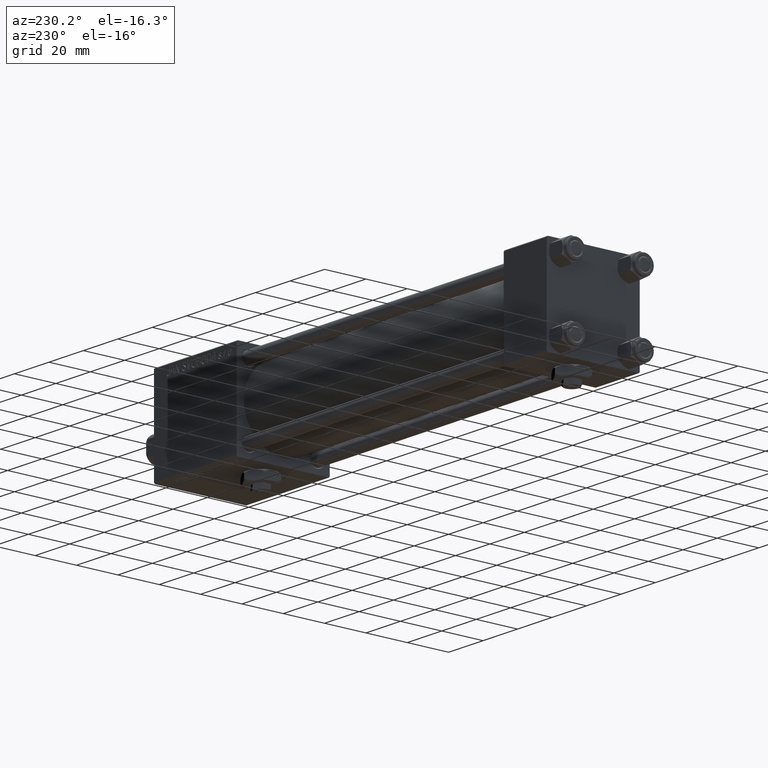
[diagram: clean part render]
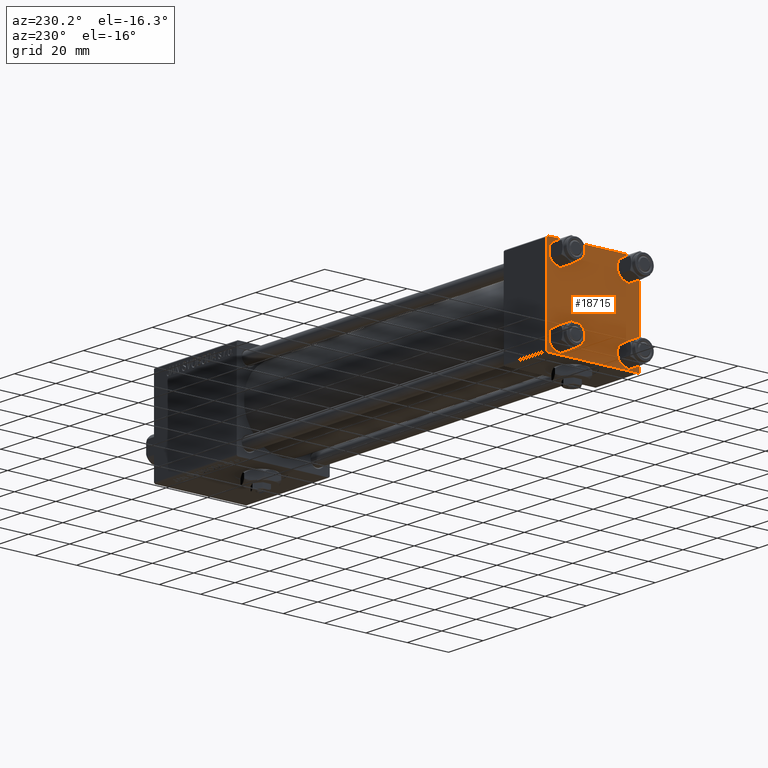
[diagram: same view with one face highlighted and labeled with its STEP entity id]
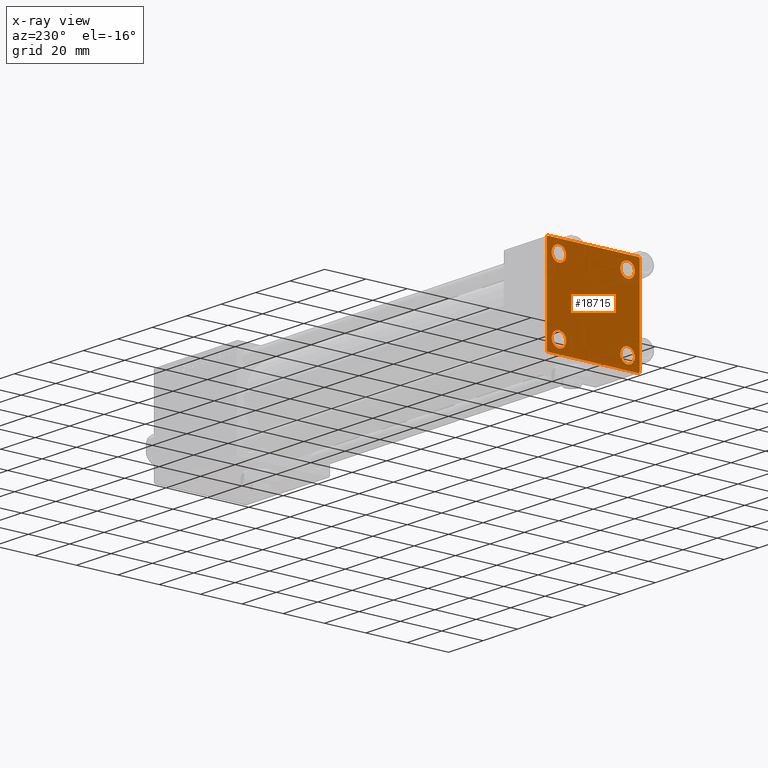
[diagram: x-ray of the same camera — body ghosted, the highlighted face saturated]
A machine part, auxiliary view. The second image highlights one B-rep face of the part: STEP entity #18715.
The next image is the same camera in x-ray: the body ghosted, the highlighted face saturated — about 0% of this face is hidden behind the body in this view.
In plain terms, the highlighted planar face has unit normal (-1, 0, 0).
Its self-contained STEP definition (entity closure, byte-faithful):
#287 = DIRECTION ( 'NONE',  ( 0.000000000000000000, 0.000000000000000000, 1.000000000000000000 ) ) ;
#431 = LINE ( 'NONE', #12297, #35179 ) ;
#534 = VECTOR ( 'NONE', #43013, 1000.000000000000000 ) ;
#538 = LINE ( 'NONE', #33000, #32851 ) ;
#647 = CARTESIAN_POINT ( 'NONE',  ( 0.000000000000000000, -22.50000000000000000, 22.00000000000000000 ) ) ;
#875 = AXIS2_PLACEMENT_3D ( 'NONE', #36017, #19376, #27574 ) ;
#1254 = AXIS2_PLACEMENT_3D ( 'NONE', #43471, #16739, #35295 ) ;
#2046 = ORIENTED_EDGE ( 'NONE', *, *, #45220, .T. ) ;
#2118 = CARTESIAN_POINT ( 'NONE',  ( 0.000000000000000000, 16.59999999999999787, 20.10000000000000142 ) ) ;
#2178 = VERTEX_POINT ( 'NONE', #17713 ) ;
#2425 = DIRECTION ( 'NONE',  ( 0.000000000000000000, 0.000000000000000000, 1.000000000000000000 ) ) ;
#3446 = DIRECTION ( 'NONE',  ( 0.000000000000000000, 0.000000000000000000, 1.000000000000000000 ) ) ;
#3458 = AXIS2_PLACEMENT_3D ( 'NONE', #34856, #14276, #2425 ) ;
#4057 = ORIENTED_EDGE ( 'NONE', *, *, #16570, .T. ) ;
#4353 = FACE_BOUND ( 'NONE', #31605, .T. ) ;
#4789 = ORIENTED_EDGE ( 'NONE', *, *, #22658, .T. ) ;
#5579 = DIRECTION ( 'NONE',  ( 0.000000000000000000, 0.000000000000000000, 1.000000000000000000 ) ) ;
#5751 = CARTESIAN_POINT ( 'NONE',  ( 0.000000000000000000, 16.59999999999999787, -16.60000000000000497 ) ) ;
#5821 = EDGE_LOOP ( 'NONE', ( #49322, #4789 ) ) ;
#6267 = ORIENTED_EDGE ( 'NONE', *, *, #21087, .T. ) ;
#7068 = CARTESIAN_POINT ( 'NONE',  ( 0.000000000000000000, -22.25000000000014566, -22.24999999999984013 ) ) ;
#7204 = CARTESIAN_POINT ( 'NONE',  ( 0.000000000000000000, -16.59999999999999076, 20.10000000000000853 ) ) ;
#7249 = EDGE_CURVE ( 'NONE', #17102, #20715, #12703, .T. ) ;
#7288 = EDGE_CURVE ( 'NONE', #20715, #32112, #35101, .T. ) ;
#8917 = VERTEX_POINT ( 'NONE', #14116 ) ;
#9281 = DIRECTION ( 'NONE',  ( 1.000000000000000000, -0.000000000000000000, 0.000000000000000000 ) ) ;
#9642 = CIRCLE ( 'NONE', #1254, 3.499999999999996003 ) ;
#9982 = CARTESIAN_POINT ( 'NONE',  ( 0.000000000000000000, 21.99999999999999289, 22.50000000000000355 ) ) ;
#10976 = AXIS2_PLACEMENT_3D ( 'NONE', #43023, #22964, #3446 ) ;
#11420 = VERTEX_POINT ( 'NONE', #16700 ) ;
#11459 = PLANE ( 'NONE',  #11686 ) ;
#11686 = AXIS2_PLACEMENT_3D ( 'NONE', #36811, #13817, #13302 ) ;
#11799 = CIRCLE ( 'NONE', #875, 3.499999999999996003 ) ;
#12051 = CARTESIAN_POINT ( 'NONE',  ( 0.000000000000000000, 16.59999999999999787, -13.10000000000000675 ) ) ;
#12297 = CARTESIAN_POINT ( 'NONE',  ( -0.000000000000000000, -22.24999999999984013, 22.25000000000015277 ) ) ;
#12511 = FACE_OUTER_BOUND ( 'NONE', #22820, .T. ) ;
#12554 = CARTESIAN_POINT ( 'NONE',  ( 0.000000000000000000, -22.50000000000000000, 22.50000000000000000 ) ) ;
#12703 = LINE ( 'NONE', #41217, #14824 ) ;
#12742 = DIRECTION ( 'NONE',  ( 0.000000000000000000, 0.000000000000000000, 1.000000000000000000 ) ) ;
#13302 = DIRECTION ( 'NONE',  ( -0.000000000000000000, 0.000000000000000000, 1.000000000000000000 ) ) ;
#13817 = DIRECTION ( 'NONE',  ( -1.000000000000000000, 0.000000000000000000, -0.000000000000000000 ) ) ;
#13924 = EDGE_CURVE ( 'NONE', #31781, #32647, #431, .T. ) ;
#14116 = CARTESIAN_POINT ( 'NONE',  ( 0.000000000000000000, 16.59999999999999787, 13.10000000000000675 ) ) ;
#14222 = AXIS2_PLACEMENT_3D ( 'NONE', #29607, #9281, #5579 ) ;
#14276 = DIRECTION ( 'NONE',  ( 1.000000000000000000, -0.000000000000000000, 0.000000000000000000 ) ) ;
#14670 = EDGE_CURVE ( 'NONE', #31781, #51512, #36321, .T. ) ;
#14824 = VECTOR ( 'NONE', #37514, 1000.000000000000114 ) ;
#15674 = CIRCLE ( 'NONE', #45215, 3.499999999999996003 ) ;
#16237 = DIRECTION ( 'NONE',  ( 0.000000000000000000, 0.000000000000000000, -1.000000000000000000 ) ) ;
#16249 = DIRECTION ( 'NONE',  ( -0.000000000000000000, 0.7071067811865525687, 0.7071067811865425767 ) ) ;
#16462 = FACE_BOUND ( 'NONE', #5821, .T. ) ;
#16570 = EDGE_CURVE ( 'NONE', #32112, #41309, #20288, .T. ) ;
#16700 = CARTESIAN_POINT ( 'NONE',  ( 0.000000000000000000, -16.59999999999999076, -20.10000000000000497 ) ) ;
#16739 = DIRECTION ( 'NONE',  ( 1.000000000000000000, -0.000000000000000000, 0.000000000000000000 ) ) ;
#16845 = ORIENTED_EDGE ( 'NONE', *, *, #41752, .T. ) ;
#17102 = VERTEX_POINT ( 'NONE', #9982 ) ;
#17540 = EDGE_LOOP ( 'NONE', ( #2046, #24345 ) ) ;
#17713 = CARTESIAN_POINT ( 'NONE',  ( 0.000000000000000000, 16.59999999999999787, -20.10000000000000142 ) ) ;
#17743 = EDGE_CURVE ( 'NONE', #27343, #42514, #39507, .T. ) ;
#18673 = LINE ( 'NONE', #7068, #42351 ) ;
#18715 = ADVANCED_FACE ( 'NONE', ( #32308, #40504, #4353, #16462, #12511 ), #11459, .T. ) ;
#19376 = DIRECTION ( 'NONE',  ( 1.000000000000000000, -0.000000000000000000, 0.000000000000000000 ) ) ;
#19786 = CARTESIAN_POINT ( 'NONE',  ( 0.000000000000000000, 21.99999999999999289, -22.49999999999999645 ) ) ;
#20006 = VECTOR ( 'NONE', #16237, 1000.000000000000000 ) ;
#20288 = LINE ( 'NONE', #24255, #49583 ) ;
#20391 = EDGE_CURVE ( 'NONE', #35133, #11420, #11799, .T. ) ;
#20653 = EDGE_CURVE ( 'NONE', #41309, #30604, #22778, .T. ) ;
#20715 = VERTEX_POINT ( 'NONE', #39398 ) ;
#20914 = CARTESIAN_POINT ( 'NONE',  ( 0.000000000000000000, 16.59999999999999787, 16.60000000000000497 ) ) ;
#20926 = ORIENTED_EDGE ( 'NONE', *, *, #20653, .T. ) ;
#21087 = EDGE_CURVE ( 'NONE', #11420, #35133, #32045, .T. ) ;
#21182 = DIRECTION ( 'NONE',  ( 1.000000000000000000, -0.000000000000000000, 0.000000000000000000 ) ) ;
#21913 = VECTOR ( 'NONE', #47071, 1000.000000000000000 ) ;
#22658 = EDGE_CURVE ( 'NONE', #8917, #29145, #51485, .T. ) ;
#22778 = LINE ( 'NONE', #34151, #21913 ) ;
#22820 = EDGE_LOOP ( 'NONE', ( #27272, #4057, #20926, #33198, #27939, #24159, #34809, #46835 ) ) ;
#22964 = DIRECTION ( 'NONE',  ( 1.000000000000000000, -0.000000000000000000, 0.000000000000000000 ) ) ;
#23588 = CARTESIAN_POINT ( 'NONE',  ( 0.000000000000000000, -21.99999999999997158, -22.50000000000000711 ) ) ;
#23724 = EDGE_CURVE ( 'NONE', #17102, #32647, #538, .T. ) ;
#24159 = ORIENTED_EDGE ( 'NONE', *, *, #13924, .T. ) ;
#24255 = CARTESIAN_POINT ( 'NONE',  ( 0.000000000000000000, 22.25000000000014566, -22.24999999999984013 ) ) ;
#24345 = ORIENTED_EDGE ( 'NONE', *, *, #17743, .T. ) ;
#25119 = EDGE_LOOP ( 'NONE', ( #49455, #6267 ) ) ;
#26058 = DIRECTION ( 'NONE',  ( 0.000000000000000000, 0.000000000000000000, 1.000000000000000000 ) ) ;
#27272 = ORIENTED_EDGE ( 'NONE', *, *, #7288, .T. ) ;
#27343 = VERTEX_POINT ( 'NONE', #48816 ) ;
#27574 = DIRECTION ( 'NONE',  ( 0.000000000000000000, 0.000000000000000000, 1.000000000000000000 ) ) ;
#27596 = EDGE_CURVE ( 'NONE', #30604, #51512, #18673, .T. ) ;
#27939 = ORIENTED_EDGE ( 'NONE', *, *, #14670, .F. ) ;
#29145 = VERTEX_POINT ( 'NONE', #2118 ) ;
#29607 = CARTESIAN_POINT ( 'NONE',  ( 0.000000000000000000, -16.59999999999999076, 16.60000000000000853 ) ) ;
#30604 = VERTEX_POINT ( 'NONE', #23588 ) ;
#31605 = EDGE_LOOP ( 'NONE', ( #38367, #16845 ) ) ;
#31781 = VERTEX_POINT ( 'NONE', #647 ) ;
#31963 = CARTESIAN_POINT ( 'NONE',  ( 0.000000000000000000, -16.59999999999999076, 16.60000000000000853 ) ) ;
#32045 = CIRCLE ( 'NONE', #10976, 3.499999999999996003 ) ;
#32112 = VERTEX_POINT ( 'NONE', #45458 ) ;
#32308 = FACE_BOUND ( 'NONE', #17540, .T. ) ;
#32609 = AXIS2_PLACEMENT_3D ( 'NONE', #5751, #33728, #26058 ) ;
#32647 = VERTEX_POINT ( 'NONE', #35043 ) ;
#32692 = EDGE_CURVE ( 'NONE', #43159, #2178, #9642, .T. ) ;
#32851 = VECTOR ( 'NONE', #48830, 1000.000000000000000 ) ;
#33000 = CARTESIAN_POINT ( 'NONE',  ( 0.000000000000000000, 22.50000000000000000, 22.50000000000000355 ) ) ;
#33198 = ORIENTED_EDGE ( 'NONE', *, *, #27596, .T. ) ;
#33728 = DIRECTION ( 'NONE',  ( 1.000000000000000000, -0.000000000000000000, 0.000000000000000000 ) ) ;
#34151 = CARTESIAN_POINT ( 'NONE',  ( 0.000000000000000000, 22.50000000000000000, -22.49999999999999645 ) ) ;
#34809 = ORIENTED_EDGE ( 'NONE', *, *, #23724, .F. ) ;
#34856 = CARTESIAN_POINT ( 'NONE',  ( 0.000000000000000000, 16.59999999999999787, 16.60000000000000497 ) ) ;
#35043 = CARTESIAN_POINT ( 'NONE',  ( 0.000000000000000000, -21.99999999999997868, 22.50000000000000000 ) ) ;
#35101 = LINE ( 'NONE', #42767, #534 ) ;
#35133 = VERTEX_POINT ( 'NONE', #35134 ) ;
#35134 = CARTESIAN_POINT ( 'NONE',  ( 0.000000000000000000, -16.59999999999999076, -13.10000000000001030 ) ) ;
#35179 = VECTOR ( 'NONE', #16249, 999.9999999999998863 ) ;
#35295 = DIRECTION ( 'NONE',  ( 0.000000000000000000, 0.000000000000000000, 1.000000000000000000 ) ) ;
#35918 = DIRECTION ( 'NONE',  ( 1.000000000000000000, -0.000000000000000000, 0.000000000000000000 ) ) ;
#36017 = CARTESIAN_POINT ( 'NONE',  ( 0.000000000000000000, -16.59999999999999076, -16.60000000000000853 ) ) ;
#36321 = LINE ( 'NONE', #12554, #20006 ) ;
#36811 = CARTESIAN_POINT ( 'NONE',  ( 0.000000000000000000, 0.000000000000000000, 0.000000000000000000 ) ) ;
#37514 = DIRECTION ( 'NONE',  ( 0.000000000000000000, 0.7071067811865474617, -0.7071067811865474617 ) ) ;
#38367 = ORIENTED_EDGE ( 'NONE', *, *, #32692, .T. ) ;
#39398 = CARTESIAN_POINT ( 'NONE',  ( 0.000000000000000000, 22.50000000000000000, 21.99999999999999645 ) ) ;
#39507 = CIRCLE ( 'NONE', #14222, 3.499999999999996003 ) ;
#40364 = DIRECTION ( 'NONE',  ( -0.000000000000000000, -0.7071067811865426878, -0.7071067811865524577 ) ) ;
#40504 = FACE_BOUND ( 'NONE', #25119, .T. ) ;
#41100 = EDGE_CURVE ( 'NONE', #29145, #8917, #15674, .T. ) ;
#41217 = CARTESIAN_POINT ( 'NONE',  ( 0.000000000000000000, 22.24999999999999645, 22.24999999999999645 ) ) ;
#41309 = VERTEX_POINT ( 'NONE', #19786 ) ;
#41752 = EDGE_CURVE ( 'NONE', #2178, #43159, #42711, .T. ) ;
#42204 = DIRECTION ( 'NONE',  ( 0.000000000000000000, -0.7071067811865426878, 0.7071067811865524577 ) ) ;
#42351 = VECTOR ( 'NONE', #42204, 1000.000000000000000 ) ;
#42514 = VERTEX_POINT ( 'NONE', #7204 ) ;
#42711 = CIRCLE ( 'NONE', #32609, 3.499999999999996003 ) ;
#42767 = CARTESIAN_POINT ( 'NONE',  ( 0.000000000000000000, 22.50000000000000000, 22.50000000000000355 ) ) ;
#43013 = DIRECTION ( 'NONE',  ( 0.000000000000000000, 0.000000000000000000, -1.000000000000000000 ) ) ;
#43023 = CARTESIAN_POINT ( 'NONE',  ( 0.000000000000000000, -16.59999999999999076, -16.60000000000000853 ) ) ;
#43159 = VERTEX_POINT ( 'NONE', #12051 ) ;
#43471 = CARTESIAN_POINT ( 'NONE',  ( 0.000000000000000000, 16.59999999999999787, -16.60000000000000497 ) ) ;
#43672 = AXIS2_PLACEMENT_3D ( 'NONE', #31963, #35918, #287 ) ;
#45215 = AXIS2_PLACEMENT_3D ( 'NONE', #20914, #21182, #12742 ) ;
#45220 = EDGE_CURVE ( 'NONE', #42514, #27343, #48738, .T. ) ;
#45458 = CARTESIAN_POINT ( 'NONE',  ( 0.000000000000000000, 22.50000000000000000, -21.99999999999996803 ) ) ;
#46835 = ORIENTED_EDGE ( 'NONE', *, *, #7249, .T. ) ;
#47071 = DIRECTION ( 'NONE',  ( 0.000000000000000000, -1.000000000000000000, -2.312964634635742957E-16 ) ) ;
#47909 = CARTESIAN_POINT ( 'NONE',  ( 0.000000000000000000, -22.50000000000000000, -21.99999999999997158 ) ) ;
#48738 = CIRCLE ( 'NONE', #43672, 3.499999999999996003 ) ;
#48816 = CARTESIAN_POINT ( 'NONE',  ( 0.000000000000000000, -16.59999999999999076, 13.10000000000001030 ) ) ;
#48830 = DIRECTION ( 'NONE',  ( 0.000000000000000000, -1.000000000000000000, -7.709882115452476934E-17 ) ) ;
#49322 = ORIENTED_EDGE ( 'NONE', *, *, #41100, .T. ) ;
#49455 = ORIENTED_EDGE ( 'NONE', *, *, #20391, .T. ) ;
#49583 = VECTOR ( 'NONE', #40364, 1000.000000000000000 ) ;
#51485 = CIRCLE ( 'NONE', #3458, 3.499999999999996003 ) ;
#51512 = VERTEX_POINT ( 'NONE', #47909 ) ;